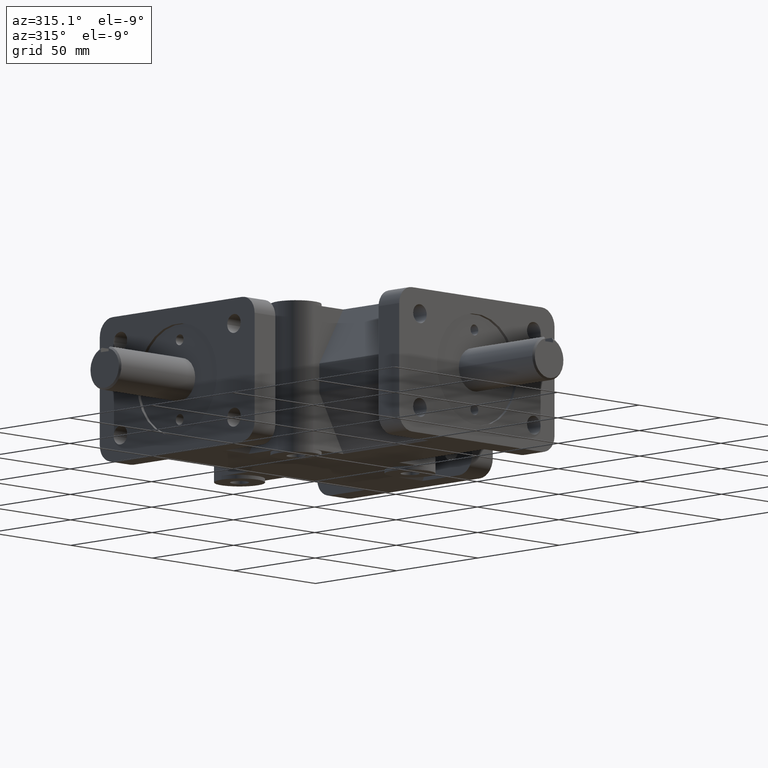
[diagram: clean part render]
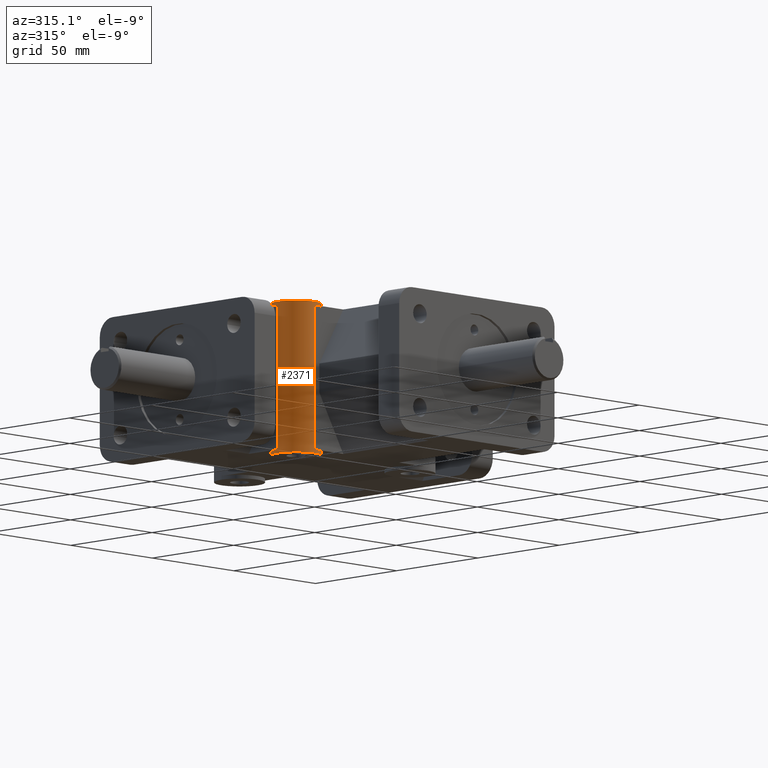
[diagram: same view with one face highlighted and labeled with its STEP entity id]
A machine part, auxiliary view. The second image highlights one B-rep face of the part: STEP entity #2371.
In plain terms, the highlighted cylindrical surface (bore or boss wall) has radius 11.1125 mm, axis along (0, 0, -1).
Its self-contained STEP definition (entity closure, byte-faithful):
#228=LINE('',#3980,#450);
#229=LINE('',#3982,#451);
#230=LINE('',#3983,#452);
#231=LINE('',#3984,#453);
#450=VECTOR('',#3256,1.);
#451=VECTOR('',#3259,0.4375);
#452=VECTOR('',#3260,1.);
#453=VECTOR('',#3261,0.4375);
#506=CYLINDRICAL_SURFACE('',#2614,0.4375);
#659=FACE_OUTER_BOUND('',#823,.T.);
#823=EDGE_LOOP('',(#2065,#2066,#2067,#2068,#2069,#2070,#2071,#2072,#2073,
#2074));
#910=CIRCLE('',#2486,0.4375);
#913=CIRCLE('',#2490,0.4375);
#952=CIRCLE('',#2576,0.4375);
#953=CIRCLE('',#2578,0.4375);
#1058=VERTEX_POINT('',#3566);
#1059=VERTEX_POINT('',#3568);
#1072=VERTEX_POINT('',#3600);
#1073=VERTEX_POINT('',#3602);
#1153=VERTEX_POINT('',#3865);
#1154=VERTEX_POINT('',#3868);
#1295=EDGE_CURVE('',#1058,#1059,#910,.T.);
#1314=EDGE_CURVE('',#1072,#1073,#913,.T.);
#1438=EDGE_CURVE('',#1153,#1153,#952,.T.);
#1439=EDGE_CURVE('',#1154,#1154,#953,.T.);
#1495=EDGE_CURVE('',#1072,#1059,#228,.T.);
#1496=EDGE_CURVE('',#1154,#1059,#229,.T.);
#1497=EDGE_CURVE('',#1073,#1058,#230,.T.);
#1498=EDGE_CURVE('',#1072,#1153,#231,.T.);
#2065=ORIENTED_EDGE('',*,*,#1439,.T.);
#2066=ORIENTED_EDGE('',*,*,#1496,.T.);
#2067=ORIENTED_EDGE('',*,*,#1295,.F.);
#2068=ORIENTED_EDGE('',*,*,#1497,.F.);
#2069=ORIENTED_EDGE('',*,*,#1314,.F.);
#2070=ORIENTED_EDGE('',*,*,#1498,.T.);
#2071=ORIENTED_EDGE('',*,*,#1438,.T.);
#2072=ORIENTED_EDGE('',*,*,#1498,.F.);
#2073=ORIENTED_EDGE('',*,*,#1495,.T.);
#2074=ORIENTED_EDGE('',*,*,#1496,.F.);
#2371=ADVANCED_FACE('',(#659),#506,.T.);
#2486=AXIS2_PLACEMENT_3D('',#3569,#2855,#2856);
#2490=AXIS2_PLACEMENT_3D('',#3603,#2879,#2880);
#2576=AXIS2_PLACEMENT_3D('',#3866,#3130,#3131);
#2578=AXIS2_PLACEMENT_3D('',#3869,#3134,#3135);
#2614=AXIS2_PLACEMENT_3D('',#3981,#3257,#3258);
#2855=DIRECTION('center_axis',(0.,0.,1.));
#2856=DIRECTION('ref_axis',(1.,0.,0.));
#2879=DIRECTION('center_axis',(0.,0.,-1.));
#2880=DIRECTION('ref_axis',(1.,0.,0.));
#3130=DIRECTION('center_axis',(0.,0.,-1.));
#3131=DIRECTION('ref_axis',(1.,0.,0.));
#3134=DIRECTION('center_axis',(0.,0.,1.));
#3135=DIRECTION('ref_axis',(1.,0.,0.));
#3256=DIRECTION('',(0.,0.,-1.));
#3257=DIRECTION('center_axis',(0.,0.,-1.));
#3258=DIRECTION('ref_axis',(1.,0.,0.));
#3259=DIRECTION('',(0.,0.,1.));
#3260=DIRECTION('',(0.,0.,-1.));
#3261=DIRECTION('',(0.,0.,1.));
#3566=CARTESIAN_POINT('',(-1.375,2.5625,-1.25));
#3568=CARTESIAN_POINT('',(-1.8125,3.,-1.25));
#3569=CARTESIAN_POINT('Origin',(-1.375,3.,-1.25));
#3600=CARTESIAN_POINT('',(-1.8125,3.,1.25));
#3602=CARTESIAN_POINT('',(-1.375,2.5625,1.25));
#3603=CARTESIAN_POINT('Origin',(-1.375,3.,1.25));
#3865=CARTESIAN_POINT('',(-1.8125,3.,1.3125));
#3866=CARTESIAN_POINT('Origin',(-1.375,3.,1.3125));
#3868=CARTESIAN_POINT('',(-1.8125,3.,-1.3125));
#3869=CARTESIAN_POINT('Origin',(-1.375,3.,-1.3125));
#3980=CARTESIAN_POINT('',(-1.8125,3.,0.));
#3981=CARTESIAN_POINT('Origin',(-1.375,3.,0.));
#3982=CARTESIAN_POINT('',(-1.8125,3.,0.));
#3983=CARTESIAN_POINT('',(-1.375,2.5625,0.));
#3984=CARTESIAN_POINT('',(-1.8125,3.,0.));